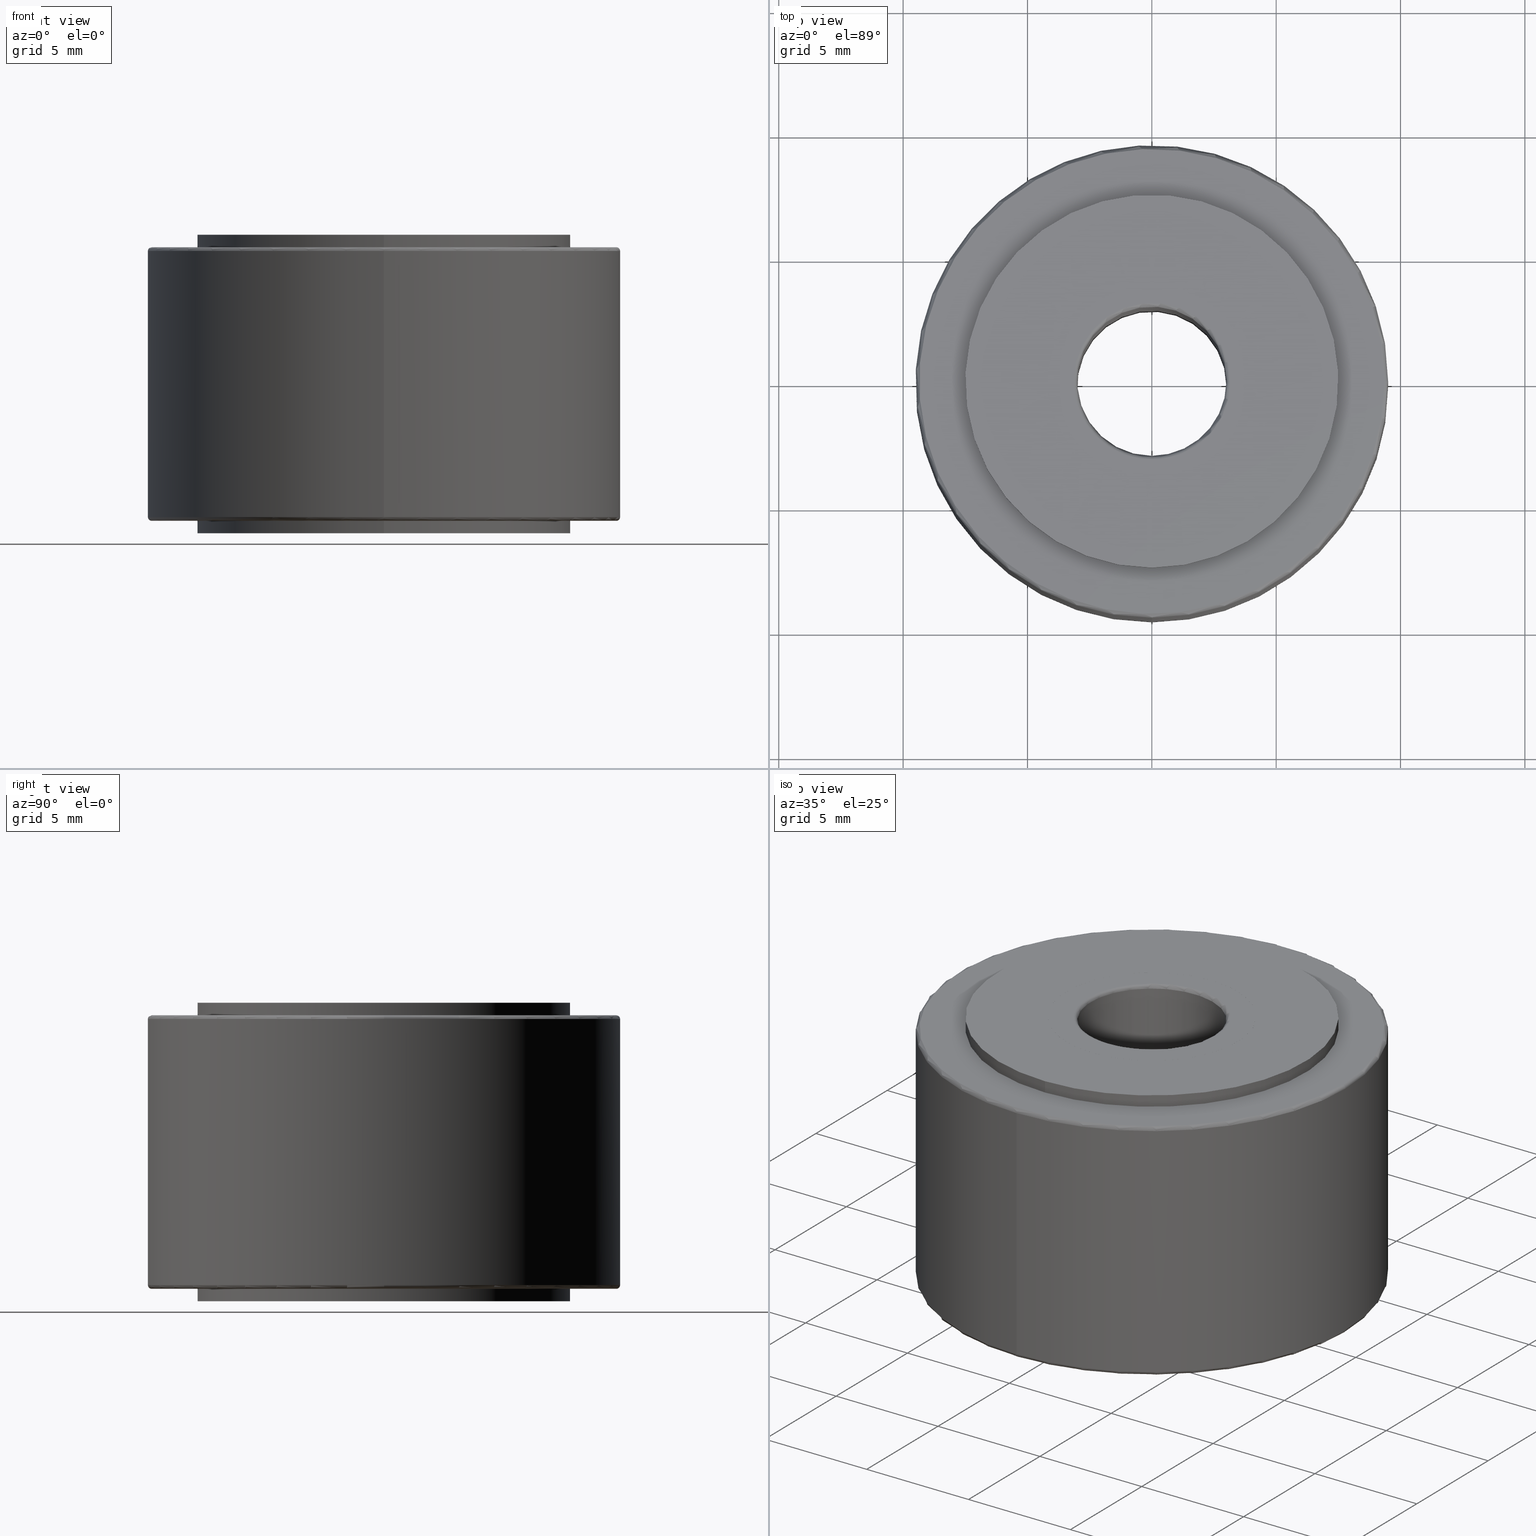
[diagram: canonical four-view strip — front | top / right | iso, engineering-drawing reading convention]
A machine part, canonical four-view strip (front | top / right | iso — engineering-drawing reading convention). The complete STEP part file that produces these views, byte-faithful:
ISO-10303-21;
HEADER;
/* Generated by software containing ST-Developer
 * from STEP Tools, Inc. (www.steptools.com) 
 */

FILE_DESCRIPTION(
/* description */ ('CUSCINETTO RULLI NATR6-PPX'),
/* implementation_level */ '2;1');

FILE_NAME(
/* name */ 'C:\\Users\\tecnico7\\Desktop\\DM80CUNATR6.stp',
/* time_stamp */ '2022-07-20T10:40:13+02:00',
/* author */ ('tecnico7'),
/* organization */ (''),
/* preprocessor_version */ 'ST-DEVELOPER v18.1',
/* originating_system */ 'Autodesk Inventor 2022',
/* authorisation */ '');

FILE_SCHEMA (('AUTOMOTIVE_DESIGN { 1 0 10303 214 3 1 1 }'));
ENDSEC;

DATA;
#10=MECHANICAL_DESIGN_GEOMETRIC_PRESENTATION_REPRESENTATION('',(#14,#15,
#16,#17,#18),#552);
#11=SHAPE_REPRESENTATION_RELATIONSHIP('SRR','None',#559,#12);
#12=ADVANCED_BREP_SHAPE_REPRESENTATION('',(#13),#551);
#13=MANIFOLD_SOLID_BREP('Solido1',#291);
#14=STYLED_ITEM('',(#569),#276);
#15=STYLED_ITEM('',(#569),#277);
#16=STYLED_ITEM('',(#569),#283);
#17=STYLED_ITEM('',(#569),#284);
#18=STYLED_ITEM('',(#568),#13);
#19=LINE('',#483,#27);
#20=LINE('',#489,#28);
#21=LINE('',#497,#29);
#22=LINE('',#511,#30);
#23=LINE('',#523,#31);
#24=LINE('',#529,#32);
#25=LINE('',#537,#33);
#26=LINE('',#548,#34);
#27=VECTOR('',#382,4.2);
#28=VECTOR('',#389,4.201);
#29=VECTOR('',#400,7.5);
#30=VECTOR('',#417,9.5);
#31=VECTOR('',#434,7.5);
#32=VECTOR('',#441,4.201);
#33=VECTOR('',#452,4.2);
#34=VECTOR('',#467,3.);
#35=CYLINDRICAL_SURFACE('',#321,4.2);
#36=CYLINDRICAL_SURFACE('',#325,4.201);
#37=CYLINDRICAL_SURFACE('',#329,7.5);
#38=CYLINDRICAL_SURFACE('',#337,9.5);
#39=CYLINDRICAL_SURFACE('',#345,7.5);
#40=CYLINDRICAL_SURFACE('',#349,4.201);
#41=CYLINDRICAL_SURFACE('',#353,4.2);
#42=CYLINDRICAL_SURFACE('',#361,3.);
#43=FACE_BOUND('',#81,.T.);
#44=FACE_BOUND('',#84,.T.);
#45=FACE_BOUND('',#87,.T.);
#46=FACE_BOUND('',#90,.T.);
#47=FACE_BOUND('',#95,.T.);
#48=FACE_BOUND('',#98,.T.);
#49=FACE_BOUND('',#101,.T.);
#50=FACE_BOUND('',#104,.T.);
#51=PLANE('',#319);
#52=PLANE('',#323);
#53=PLANE('',#327);
#54=PLANE('',#331);
#55=PLANE('',#343);
#56=PLANE('',#347);
#57=PLANE('',#351);
#58=PLANE('',#355);
#59=FACE_OUTER_BOUND('',#79,.T.);
#60=FACE_OUTER_BOUND('',#80,.T.);
#61=FACE_OUTER_BOUND('',#82,.T.);
#62=FACE_OUTER_BOUND('',#83,.T.);
#63=FACE_OUTER_BOUND('',#85,.T.);
#64=FACE_OUTER_BOUND('',#86,.T.);
#65=FACE_OUTER_BOUND('',#88,.T.);
#66=FACE_OUTER_BOUND('',#89,.T.);
#67=FACE_OUTER_BOUND('',#91,.T.);
#68=FACE_OUTER_BOUND('',#92,.T.);
#69=FACE_OUTER_BOUND('',#93,.T.);
#70=FACE_OUTER_BOUND('',#94,.T.);
#71=FACE_OUTER_BOUND('',#96,.T.);
#72=FACE_OUTER_BOUND('',#97,.T.);
#73=FACE_OUTER_BOUND('',#99,.T.);
#74=FACE_OUTER_BOUND('',#100,.T.);
#75=FACE_OUTER_BOUND('',#102,.T.);
#76=FACE_OUTER_BOUND('',#103,.T.);
#77=FACE_OUTER_BOUND('',#105,.T.);
#78=FACE_OUTER_BOUND('',#106,.T.);
#79=EDGE_LOOP('',(#195,#196,#197,#198,#199));
#80=EDGE_LOOP('',(#200));
#81=EDGE_LOOP('',(#201));
#82=EDGE_LOOP('',(#202,#203,#204,#205));
#83=EDGE_LOOP('',(#206));
#84=EDGE_LOOP('',(#207));
#85=EDGE_LOOP('',(#208,#209,#210,#211));
#86=EDGE_LOOP('',(#212));
#87=EDGE_LOOP('',(#213));
#88=EDGE_LOOP('',(#214,#215,#216,#217));
#89=EDGE_LOOP('',(#218));
#90=EDGE_LOOP('',(#219));
#91=EDGE_LOOP('',(#220,#221,#222,#223,#224));
#92=EDGE_LOOP('',(#225,#226,#227,#228,#229,#230));
#93=EDGE_LOOP('',(#231,#232,#233,#234,#235));
#94=EDGE_LOOP('',(#236));
#95=EDGE_LOOP('',(#237));
#96=EDGE_LOOP('',(#238,#239,#240,#241));
#97=EDGE_LOOP('',(#242));
#98=EDGE_LOOP('',(#243));
#99=EDGE_LOOP('',(#244,#245,#246,#247));
#100=EDGE_LOOP('',(#248));
#101=EDGE_LOOP('',(#249));
#102=EDGE_LOOP('',(#250,#251,#252,#253));
#103=EDGE_LOOP('',(#254));
#104=EDGE_LOOP('',(#255));
#105=EDGE_LOOP('',(#256,#257,#258,#259,#260));
#106=EDGE_LOOP('',(#261,#262,#263,#264,#265,#266));
#107=CIRCLE('',#315,3.15);
#108=CIRCLE('',#316,0.15);
#109=CIRCLE('',#317,3.);
#110=CIRCLE('',#318,3.);
#111=CIRCLE('',#320,4.2);
#112=CIRCLE('',#322,4.2);
#113=CIRCLE('',#324,4.201);
#114=CIRCLE('',#326,4.201);
#115=CIRCLE('',#328,7.5);
#116=CIRCLE('',#330,7.5);
#117=CIRCLE('',#332,9.35);
#118=CIRCLE('',#334,9.5);
#119=CIRCLE('',#335,9.5);
#120=CIRCLE('',#336,0.15);
#121=CIRCLE('',#338,9.5);
#122=CIRCLE('',#339,9.5);
#123=CIRCLE('',#341,9.35);
#124=CIRCLE('',#342,0.15);
#125=CIRCLE('',#344,7.5);
#126=CIRCLE('',#346,7.5);
#127=CIRCLE('',#348,4.201);
#128=CIRCLE('',#350,4.201);
#129=CIRCLE('',#352,4.2);
#130=CIRCLE('',#354,4.2);
#131=CIRCLE('',#356,3.15);
#132=CIRCLE('',#358,3.);
#133=CIRCLE('',#359,3.);
#134=CIRCLE('',#360,0.15);
#135=VERTEX_POINT('',#470);
#136=VERTEX_POINT('',#472);
#137=VERTEX_POINT('',#474);
#138=VERTEX_POINT('',#478);
#139=VERTEX_POINT('',#481);
#140=VERTEX_POINT('',#485);
#141=VERTEX_POINT('',#488);
#142=VERTEX_POINT('',#492);
#143=VERTEX_POINT('',#495);
#144=VERTEX_POINT('',#499);
#145=VERTEX_POINT('',#502);
#146=VERTEX_POINT('',#503);
#147=VERTEX_POINT('',#508);
#148=VERTEX_POINT('',#509);
#149=VERTEX_POINT('',#514);
#150=VERTEX_POINT('',#518);
#151=VERTEX_POINT('',#521);
#152=VERTEX_POINT('',#525);
#153=VERTEX_POINT('',#528);
#154=VERTEX_POINT('',#532);
#155=VERTEX_POINT('',#535);
#156=VERTEX_POINT('',#539);
#157=VERTEX_POINT('',#542);
#158=VERTEX_POINT('',#543);
#159=EDGE_CURVE('',#135,#135,#107,.T.);
#160=EDGE_CURVE('',#135,#136,#108,.T.);
#161=EDGE_CURVE('',#136,#137,#109,.T.);
#162=EDGE_CURVE('',#137,#136,#110,.T.);
#163=EDGE_CURVE('',#138,#138,#111,.T.);
#164=EDGE_CURVE('',#139,#139,#112,.T.);
#165=EDGE_CURVE('',#139,#138,#19,.T.);
#166=EDGE_CURVE('',#140,#140,#113,.T.);
#167=EDGE_CURVE('',#140,#141,#20,.T.);
#168=EDGE_CURVE('',#141,#141,#114,.T.);
#169=EDGE_CURVE('',#142,#142,#115,.T.);
#170=EDGE_CURVE('',#143,#143,#116,.T.);
#171=EDGE_CURVE('',#143,#142,#21,.T.);
#172=EDGE_CURVE('',#144,#144,#117,.T.);
#173=EDGE_CURVE('',#145,#146,#118,.T.);
#174=EDGE_CURVE('',#146,#145,#119,.T.);
#175=EDGE_CURVE('',#146,#144,#120,.T.);
#176=EDGE_CURVE('',#147,#148,#121,.T.);
#177=EDGE_CURVE('',#147,#145,#22,.T.);
#178=EDGE_CURVE('',#148,#147,#122,.T.);
#179=EDGE_CURVE('',#149,#149,#123,.T.);
#180=EDGE_CURVE('',#149,#148,#124,.T.);
#181=EDGE_CURVE('',#150,#150,#125,.T.);
#182=EDGE_CURVE('',#151,#151,#126,.T.);
#183=EDGE_CURVE('',#151,#150,#23,.T.);
#184=EDGE_CURVE('',#152,#152,#127,.T.);
#185=EDGE_CURVE('',#152,#153,#24,.T.);
#186=EDGE_CURVE('',#153,#153,#128,.T.);
#187=EDGE_CURVE('',#154,#154,#129,.T.);
#188=EDGE_CURVE('',#155,#155,#130,.T.);
#189=EDGE_CURVE('',#155,#154,#25,.T.);
#190=EDGE_CURVE('',#156,#156,#131,.T.);
#191=EDGE_CURVE('',#157,#158,#132,.T.);
#192=EDGE_CURVE('',#158,#157,#133,.T.);
#193=EDGE_CURVE('',#158,#156,#134,.T.);
#194=EDGE_CURVE('',#157,#137,#26,.T.);
#195=ORIENTED_EDGE('',*,*,#159,.F.);
#196=ORIENTED_EDGE('',*,*,#160,.T.);
#197=ORIENTED_EDGE('',*,*,#161,.T.);
#198=ORIENTED_EDGE('',*,*,#162,.T.);
#199=ORIENTED_EDGE('',*,*,#160,.F.);
#200=ORIENTED_EDGE('',*,*,#163,.F.);
#201=ORIENTED_EDGE('',*,*,#159,.T.);
#202=ORIENTED_EDGE('',*,*,#164,.F.);
#203=ORIENTED_EDGE('',*,*,#165,.T.);
#204=ORIENTED_EDGE('',*,*,#163,.T.);
#205=ORIENTED_EDGE('',*,*,#165,.F.);
#206=ORIENTED_EDGE('',*,*,#166,.F.);
#207=ORIENTED_EDGE('',*,*,#164,.T.);
#208=ORIENTED_EDGE('',*,*,#166,.T.);
#209=ORIENTED_EDGE('',*,*,#167,.T.);
#210=ORIENTED_EDGE('',*,*,#168,.F.);
#211=ORIENTED_EDGE('',*,*,#167,.F.);
#212=ORIENTED_EDGE('',*,*,#169,.F.);
#213=ORIENTED_EDGE('',*,*,#168,.T.);
#214=ORIENTED_EDGE('',*,*,#170,.F.);
#215=ORIENTED_EDGE('',*,*,#171,.T.);
#216=ORIENTED_EDGE('',*,*,#169,.T.);
#217=ORIENTED_EDGE('',*,*,#171,.F.);
#218=ORIENTED_EDGE('',*,*,#172,.F.);
#219=ORIENTED_EDGE('',*,*,#170,.T.);
#220=ORIENTED_EDGE('',*,*,#173,.F.);
#221=ORIENTED_EDGE('',*,*,#174,.F.);
#222=ORIENTED_EDGE('',*,*,#175,.T.);
#223=ORIENTED_EDGE('',*,*,#172,.T.);
#224=ORIENTED_EDGE('',*,*,#175,.F.);
#225=ORIENTED_EDGE('',*,*,#176,.F.);
#226=ORIENTED_EDGE('',*,*,#177,.T.);
#227=ORIENTED_EDGE('',*,*,#173,.T.);
#228=ORIENTED_EDGE('',*,*,#174,.T.);
#229=ORIENTED_EDGE('',*,*,#177,.F.);
#230=ORIENTED_EDGE('',*,*,#178,.F.);
#231=ORIENTED_EDGE('',*,*,#179,.F.);
#232=ORIENTED_EDGE('',*,*,#180,.T.);
#233=ORIENTED_EDGE('',*,*,#178,.T.);
#234=ORIENTED_EDGE('',*,*,#176,.T.);
#235=ORIENTED_EDGE('',*,*,#180,.F.);
#236=ORIENTED_EDGE('',*,*,#179,.T.);
#237=ORIENTED_EDGE('',*,*,#181,.F.);
#238=ORIENTED_EDGE('',*,*,#182,.F.);
#239=ORIENTED_EDGE('',*,*,#183,.T.);
#240=ORIENTED_EDGE('',*,*,#181,.T.);
#241=ORIENTED_EDGE('',*,*,#183,.F.);
#242=ORIENTED_EDGE('',*,*,#182,.T.);
#243=ORIENTED_EDGE('',*,*,#184,.F.);
#244=ORIENTED_EDGE('',*,*,#184,.T.);
#245=ORIENTED_EDGE('',*,*,#185,.T.);
#246=ORIENTED_EDGE('',*,*,#186,.F.);
#247=ORIENTED_EDGE('',*,*,#185,.F.);
#248=ORIENTED_EDGE('',*,*,#186,.T.);
#249=ORIENTED_EDGE('',*,*,#187,.F.);
#250=ORIENTED_EDGE('',*,*,#188,.F.);
#251=ORIENTED_EDGE('',*,*,#189,.T.);
#252=ORIENTED_EDGE('',*,*,#187,.T.);
#253=ORIENTED_EDGE('',*,*,#189,.F.);
#254=ORIENTED_EDGE('',*,*,#188,.T.);
#255=ORIENTED_EDGE('',*,*,#190,.F.);
#256=ORIENTED_EDGE('',*,*,#191,.F.);
#257=ORIENTED_EDGE('',*,*,#192,.F.);
#258=ORIENTED_EDGE('',*,*,#193,.T.);
#259=ORIENTED_EDGE('',*,*,#190,.T.);
#260=ORIENTED_EDGE('',*,*,#193,.F.);
#261=ORIENTED_EDGE('',*,*,#191,.T.);
#262=ORIENTED_EDGE('',*,*,#192,.T.);
#263=ORIENTED_EDGE('',*,*,#194,.T.);
#264=ORIENTED_EDGE('',*,*,#161,.F.);
#265=ORIENTED_EDGE('',*,*,#162,.F.);
#266=ORIENTED_EDGE('',*,*,#194,.F.);
#267=TOROIDAL_SURFACE('',#314,3.15,0.15);
#268=TOROIDAL_SURFACE('',#333,9.35,0.15);
#269=TOROIDAL_SURFACE('',#340,9.35,0.15);
#270=TOROIDAL_SURFACE('',#357,3.15,0.15);
#271=ADVANCED_FACE('',(#59),#267,.T.);
#272=ADVANCED_FACE('',(#60,#43),#51,.T.);
#273=ADVANCED_FACE('',(#61),#35,.T.);
#274=ADVANCED_FACE('',(#62,#44),#52,.T.);
#275=ADVANCED_FACE('',(#63),#36,.F.);
#276=ADVANCED_FACE('',(#64,#45),#53,.T.);
#277=ADVANCED_FACE('',(#65),#37,.T.);
#278=ADVANCED_FACE('',(#66,#46),#54,.T.);
#279=ADVANCED_FACE('',(#67),#268,.T.);
#280=ADVANCED_FACE('',(#68),#38,.T.);
#281=ADVANCED_FACE('',(#69),#269,.T.);
#282=ADVANCED_FACE('',(#70,#47),#55,.T.);
#283=ADVANCED_FACE('',(#71),#39,.T.);
#284=ADVANCED_FACE('',(#72,#48),#56,.T.);
#285=ADVANCED_FACE('',(#73),#40,.F.);
#286=ADVANCED_FACE('',(#74,#49),#57,.T.);
#287=ADVANCED_FACE('',(#75),#41,.T.);
#288=ADVANCED_FACE('',(#76,#50),#58,.T.);
#289=ADVANCED_FACE('',(#77),#270,.T.);
#290=ADVANCED_FACE('',(#78),#42,.F.);
#291=CLOSED_SHELL('',(#271,#272,#273,#274,#275,#276,#277,#278,#279,#280,
#281,#282,#283,#284,#285,#286,#287,#288,#289,#290));
#292=DERIVED_UNIT_ELEMENT(#295,1.);
#293=DERIVED_UNIT_ELEMENT(#554,-3.);
#294=DIMENSIONAL_EXPONENTS(1.,0.,0.,0.,0.,0.,0.);
#295=(
CONVERSION_BASED_UNIT('gram',#297)
MASS_UNIT()
NAMED_UNIT(#294)
);
#296=(
MASS_UNIT()
NAMED_UNIT(*)
SI_UNIT(.KILO.,.GRAM.)
);
#297=MASS_MEASURE_WITH_UNIT(MASS_MEASURE(0.001),#296);
#298=DERIVED_UNIT((#292,#293));
#299=MEASURE_REPRESENTATION_ITEM('density measure',
POSITIVE_RATIO_MEASURE(1.),#298);
#300=PROPERTY_DEFINITION_REPRESENTATION(#305,#302);
#301=PROPERTY_DEFINITION_REPRESENTATION(#306,#303);
#302=REPRESENTATION('material name',(#304),#551);
#303=REPRESENTATION('density',(#299),#551);
#304=DESCRIPTIVE_REPRESENTATION_ITEM('Generico','Generico');
#305=PROPERTY_DEFINITION('material property','material name',#561);
#306=PROPERTY_DEFINITION('material property','density of part',#561);
#307=DATE_TIME_ROLE('creation_date');
#308=APPLIED_DATE_AND_TIME_ASSIGNMENT(#309,#307,(#561));
#309=DATE_AND_TIME(#310,#311);
#310=CALENDAR_DATE(2014,18,8);
#311=LOCAL_TIME(0,0,0.,#312);
#312=COORDINATED_UNIVERSAL_TIME_OFFSET(0,0,.BEHIND.);
#313=AXIS2_PLACEMENT_3D('placement',#468,#362,#363);
#314=AXIS2_PLACEMENT_3D('',#469,#364,#365);
#315=AXIS2_PLACEMENT_3D('',#471,#366,#367);
#316=AXIS2_PLACEMENT_3D('',#473,#368,#369);
#317=AXIS2_PLACEMENT_3D('',#475,#370,#371);
#318=AXIS2_PLACEMENT_3D('',#476,#372,#373);
#319=AXIS2_PLACEMENT_3D('',#477,#374,#375);
#320=AXIS2_PLACEMENT_3D('',#479,#376,#377);
#321=AXIS2_PLACEMENT_3D('',#480,#378,#379);
#322=AXIS2_PLACEMENT_3D('',#482,#380,#381);
#323=AXIS2_PLACEMENT_3D('',#484,#383,#384);
#324=AXIS2_PLACEMENT_3D('',#486,#385,#386);
#325=AXIS2_PLACEMENT_3D('',#487,#387,#388);
#326=AXIS2_PLACEMENT_3D('',#490,#390,#391);
#327=AXIS2_PLACEMENT_3D('',#491,#392,#393);
#328=AXIS2_PLACEMENT_3D('',#493,#394,#395);
#329=AXIS2_PLACEMENT_3D('',#494,#396,#397);
#330=AXIS2_PLACEMENT_3D('',#496,#398,#399);
#331=AXIS2_PLACEMENT_3D('',#498,#401,#402);
#332=AXIS2_PLACEMENT_3D('',#500,#403,#404);
#333=AXIS2_PLACEMENT_3D('',#501,#405,#406);
#334=AXIS2_PLACEMENT_3D('',#504,#407,#408);
#335=AXIS2_PLACEMENT_3D('',#505,#409,#410);
#336=AXIS2_PLACEMENT_3D('',#506,#411,#412);
#337=AXIS2_PLACEMENT_3D('',#507,#413,#414);
#338=AXIS2_PLACEMENT_3D('',#510,#415,#416);
#339=AXIS2_PLACEMENT_3D('',#512,#418,#419);
#340=AXIS2_PLACEMENT_3D('',#513,#420,#421);
#341=AXIS2_PLACEMENT_3D('',#515,#422,#423);
#342=AXIS2_PLACEMENT_3D('',#516,#424,#425);
#343=AXIS2_PLACEMENT_3D('',#517,#426,#427);
#344=AXIS2_PLACEMENT_3D('',#519,#428,#429);
#345=AXIS2_PLACEMENT_3D('',#520,#430,#431);
#346=AXIS2_PLACEMENT_3D('',#522,#432,#433);
#347=AXIS2_PLACEMENT_3D('',#524,#435,#436);
#348=AXIS2_PLACEMENT_3D('',#526,#437,#438);
#349=AXIS2_PLACEMENT_3D('',#527,#439,#440);
#350=AXIS2_PLACEMENT_3D('',#530,#442,#443);
#351=AXIS2_PLACEMENT_3D('',#531,#444,#445);
#352=AXIS2_PLACEMENT_3D('',#533,#446,#447);
#353=AXIS2_PLACEMENT_3D('',#534,#448,#449);
#354=AXIS2_PLACEMENT_3D('',#536,#450,#451);
#355=AXIS2_PLACEMENT_3D('',#538,#453,#454);
#356=AXIS2_PLACEMENT_3D('',#540,#455,#456);
#357=AXIS2_PLACEMENT_3D('',#541,#457,#458);
#358=AXIS2_PLACEMENT_3D('',#544,#459,#460);
#359=AXIS2_PLACEMENT_3D('',#545,#461,#462);
#360=AXIS2_PLACEMENT_3D('',#546,#463,#464);
#361=AXIS2_PLACEMENT_3D('',#547,#465,#466);
#362=DIRECTION('axis',(0.,0.,1.));
#363=DIRECTION('refdir',(1.,0.,0.));
#364=DIRECTION('center_axis',(0.,3.06161699786839E-16,-1.));
#365=DIRECTION('ref_axis',(-1.,0.,0.));
#366=DIRECTION('center_axis',(0.,3.06161699786839E-16,-1.));
#367=DIRECTION('ref_axis',(1.,0.,0.));
#368=DIRECTION('center_axis',(-1.22464679914735E-16,-1.,-3.06161699786839E-16));
#369=DIRECTION('ref_axis',(1.,-1.22464679914735E-16,0.));
#370=DIRECTION('center_axis',(0.,3.06161699786839E-16,-1.));
#371=DIRECTION('ref_axis',(1.,0.,0.));
#372=DIRECTION('center_axis',(0.,3.06161699786839E-16,-1.));
#373=DIRECTION('ref_axis',(1.,0.,0.));
#374=DIRECTION('center_axis',(0.,-3.06161699786839E-16,1.));
#375=DIRECTION('ref_axis',(1.,0.,0.));
#376=DIRECTION('center_axis',(0.,3.06161699786839E-16,-1.));
#377=DIRECTION('ref_axis',(1.,0.,0.));
#378=DIRECTION('center_axis',(0.,3.06161699786839E-16,-1.));
#379=DIRECTION('ref_axis',(0.,1.,3.70074341541719E-16));
#380=DIRECTION('center_axis',(0.,3.06161699786839E-16,-1.));
#381=DIRECTION('ref_axis',(1.,0.,0.));
#382=DIRECTION('',(0.,-3.06161699786839E-16,1.));
#383=DIRECTION('center_axis',(0.,-3.06161699786839E-16,1.));
#384=DIRECTION('ref_axis',(1.,0.,0.));
#385=DIRECTION('center_axis',(0.,3.06161699786839E-16,-1.));
#386=DIRECTION('ref_axis',(1.,0.,0.));
#387=DIRECTION('center_axis',(0.,-3.06161699786839E-16,1.));
#388=DIRECTION('ref_axis',(0.,1.,3.70074341541719E-16));
#389=DIRECTION('',(0.,-3.06161699786839E-16,1.));
#390=DIRECTION('center_axis',(0.,3.06161699786839E-16,-1.));
#391=DIRECTION('ref_axis',(1.,0.,0.));
#392=DIRECTION('center_axis',(0.,-3.06161699786839E-16,1.));
#393=DIRECTION('ref_axis',(1.,0.,0.));
#394=DIRECTION('center_axis',(0.,3.06161699786839E-16,-1.));
#395=DIRECTION('ref_axis',(1.,0.,0.));
#396=DIRECTION('center_axis',(0.,3.06161699786839E-16,-1.));
#397=DIRECTION('ref_axis',(0.,1.,3.70074341541719E-16));
#398=DIRECTION('center_axis',(0.,3.06161699786839E-16,-1.));
#399=DIRECTION('ref_axis',(1.,0.,0.));
#400=DIRECTION('',(0.,-3.06161699786838E-16,1.));
#401=DIRECTION('center_axis',(0.,-3.06161699786839E-16,1.));
#402=DIRECTION('ref_axis',(1.,0.,0.));
#403=DIRECTION('center_axis',(0.,3.06161699786839E-16,-1.));
#404=DIRECTION('ref_axis',(1.,0.,0.));
#405=DIRECTION('center_axis',(0.,3.06161699786839E-16,-1.));
#406=DIRECTION('ref_axis',(-1.,0.,0.));
#407=DIRECTION('center_axis',(0.,3.06161699786839E-16,-1.));
#408=DIRECTION('ref_axis',(1.,0.,0.));
#409=DIRECTION('center_axis',(0.,3.06161699786839E-16,-1.));
#410=DIRECTION('ref_axis',(1.,0.,0.));
#411=DIRECTION('center_axis',(-1.22464679914735E-16,-1.,-3.06161699786839E-16));
#412=DIRECTION('ref_axis',(1.,-1.22464679914735E-16,0.));
#413=DIRECTION('center_axis',(0.,3.06161699786839E-16,-1.));
#414=DIRECTION('ref_axis',(0.,1.,3.70074341541719E-16));
#415=DIRECTION('center_axis',(0.,3.06161699786839E-16,-1.));
#416=DIRECTION('ref_axis',(1.,0.,0.));
#417=DIRECTION('',(0.,-3.06161699786839E-16,1.));
#418=DIRECTION('center_axis',(0.,3.06161699786839E-16,-1.));
#419=DIRECTION('ref_axis',(1.,0.,0.));
#420=DIRECTION('center_axis',(0.,3.06161699786839E-16,-1.));
#421=DIRECTION('ref_axis',(-1.,0.,0.));
#422=DIRECTION('center_axis',(0.,3.06161699786839E-16,-1.));
#423=DIRECTION('ref_axis',(1.,0.,0.));
#424=DIRECTION('center_axis',(-1.22464679914735E-16,-1.,-3.06161699786839E-16));
#425=DIRECTION('ref_axis',(1.,-1.22464679914735E-16,0.));
#426=DIRECTION('center_axis',(0.,3.06161699786839E-16,-1.));
#427=DIRECTION('ref_axis',(-1.,0.,0.));
#428=DIRECTION('center_axis',(0.,3.06161699786839E-16,-1.));
#429=DIRECTION('ref_axis',(1.,0.,0.));
#430=DIRECTION('center_axis',(0.,3.06161699786839E-16,-1.));
#431=DIRECTION('ref_axis',(0.,1.,3.70074341541719E-16));
#432=DIRECTION('center_axis',(0.,3.06161699786839E-16,-1.));
#433=DIRECTION('ref_axis',(1.,0.,0.));
#434=DIRECTION('',(0.,-3.06161699786838E-16,1.));
#435=DIRECTION('center_axis',(0.,3.06161699786839E-16,-1.));
#436=DIRECTION('ref_axis',(-1.,0.,0.));
#437=DIRECTION('center_axis',(0.,3.06161699786839E-16,-1.));
#438=DIRECTION('ref_axis',(1.,0.,0.));
#439=DIRECTION('center_axis',(0.,-3.06161699786839E-16,1.));
#440=DIRECTION('ref_axis',(0.,1.,3.70074341541719E-16));
#441=DIRECTION('',(0.,-3.06161699786839E-16,1.));
#442=DIRECTION('center_axis',(0.,3.06161699786839E-16,-1.));
#443=DIRECTION('ref_axis',(1.,0.,0.));
#444=DIRECTION('center_axis',(0.,3.06161699786839E-16,-1.));
#445=DIRECTION('ref_axis',(-1.,0.,0.));
#446=DIRECTION('center_axis',(0.,3.06161699786839E-16,-1.));
#447=DIRECTION('ref_axis',(1.,0.,0.));
#448=DIRECTION('center_axis',(0.,3.06161699786839E-16,-1.));
#449=DIRECTION('ref_axis',(0.,1.,3.70074341541719E-16));
#450=DIRECTION('center_axis',(0.,3.06161699786839E-16,-1.));
#451=DIRECTION('ref_axis',(1.,0.,0.));
#452=DIRECTION('',(0.,-3.06161699786839E-16,1.));
#453=DIRECTION('center_axis',(0.,3.06161699786839E-16,-1.));
#454=DIRECTION('ref_axis',(-1.,0.,0.));
#455=DIRECTION('center_axis',(0.,3.06161699786839E-16,-1.));
#456=DIRECTION('ref_axis',(1.,0.,0.));
#457=DIRECTION('center_axis',(0.,3.06161699786839E-16,-1.));
#458=DIRECTION('ref_axis',(-1.,0.,0.));
#459=DIRECTION('center_axis',(0.,3.06161699786839E-16,-1.));
#460=DIRECTION('ref_axis',(1.,0.,0.));
#461=DIRECTION('center_axis',(0.,3.06161699786839E-16,-1.));
#462=DIRECTION('ref_axis',(1.,0.,0.));
#463=DIRECTION('center_axis',(-1.22464679914735E-16,-1.,-3.06161699786839E-16));
#464=DIRECTION('ref_axis',(1.,-1.22464679914735E-16,0.));
#465=DIRECTION('center_axis',(0.,-3.06161699786839E-16,1.));
#466=DIRECTION('ref_axis',(0.,1.,3.70074341541719E-16));
#467=DIRECTION('',(0.,-3.06161699786838E-16,1.));
#468=CARTESIAN_POINT('',(0.,0.,0.));
#469=CARTESIAN_POINT('Origin',(0.,-2.93412675208331E-15,5.85));
#470=CARTESIAN_POINT('',(3.15,-3.36581474878275E-15,6.));
#471=CARTESIAN_POINT('Origin',(0.,-2.98005100705133E-15,6.));
#472=CARTESIAN_POINT('',(3.,-3.30152079182752E-15,5.85));
#473=CARTESIAN_POINT('Origin',(3.15,-3.31989049381473E-15,5.85));
#474=CARTESIAN_POINT('',(3.67394039744206E-16,-3.,5.85));
#475=CARTESIAN_POINT('Origin',(0.,-2.93412675208331E-15,5.85));
#476=CARTESIAN_POINT('Origin',(0.,-2.93412675208331E-15,5.85));
#477=CARTESIAN_POINT('Origin',(0.,4.2,6.));
#478=CARTESIAN_POINT('',(-5.14351655641888E-16,-4.2,6.));
#479=CARTESIAN_POINT('Origin',(0.,-2.98005100705133E-15,6.));
#480=CARTESIAN_POINT('Origin',(0.,-2.97989792620144E-15,5.9995));
#481=CARTESIAN_POINT('',(-5.14351655641888E-16,-4.2,5.999));
#482=CARTESIAN_POINT('Origin',(0.,-2.97974484535155E-15,5.999));
#483=CARTESIAN_POINT('',(-5.14351655641888E-16,-4.2,5.9995));
#484=CARTESIAN_POINT('Origin',(0.,4.201,5.999));
#485=CARTESIAN_POINT('',(5.14474120321803E-16,-4.201,5.999));
#486=CARTESIAN_POINT('Origin',(0.,-2.97974484535155E-15,5.999));
#487=CARTESIAN_POINT('Origin',(0.,-2.97989792620144E-15,5.9995));
#488=CARTESIAN_POINT('',(5.14474120321803E-16,-4.201,6.));
#489=CARTESIAN_POINT('',(5.14474120321803E-16,-4.201,5.9995));
#490=CARTESIAN_POINT('Origin',(0.,-2.98005100705133E-15,6.));
#491=CARTESIAN_POINT('Origin',(0.,7.5,6.));
#492=CARTESIAN_POINT('',(-9.18485099360515E-16,-7.5,6.));
#493=CARTESIAN_POINT('Origin',(0.,-2.98005100705133E-15,6.));
#494=CARTESIAN_POINT('Origin',(0.,-2.90351058210462E-15,5.75));
#495=CARTESIAN_POINT('',(-9.18485099360515E-16,-7.5,5.5));
#496=CARTESIAN_POINT('Origin',(0.,-2.82697015715792E-15,5.5));
#497=CARTESIAN_POINT('',(-9.18485099360515E-16,-7.5,5.75));
#498=CARTESIAN_POINT('Origin',(0.,9.35,5.5));
#499=CARTESIAN_POINT('',(9.35,-3.97201491436069E-15,5.5));
#500=CARTESIAN_POINT('Origin',(0.,-2.82697015715792E-15,5.5));
#501=CARTESIAN_POINT('Origin',(0.,-2.78104590218989E-15,5.35));
#502=CARTESIAN_POINT('',(-1.16341445918999E-15,-9.5,5.35));
#503=CARTESIAN_POINT('',(9.5,-3.94446036137988E-15,5.35));
#504=CARTESIAN_POINT('Origin',(0.,-2.78104590218989E-15,5.35));
#505=CARTESIAN_POINT('Origin',(0.,-2.78104590218989E-15,5.35));
#506=CARTESIAN_POINT('Origin',(9.35,-3.92609065939266E-15,5.35));
#507=CARTESIAN_POINT('Origin',(0.,-1.14308080833031E-15,-2.91433543964104E-15));
#508=CARTESIAN_POINT('',(-1.16341445918999E-15,-9.5,-5.35));
#509=CARTESIAN_POINT('',(9.5,-6.68530173660706E-16,-5.35));
#510=CARTESIAN_POINT('Origin',(0.,4.94884285529279E-16,-5.35));
#511=CARTESIAN_POINT('',(-1.16341445918999E-15,-9.5,-6.43004168428737E-15));
#512=CARTESIAN_POINT('Origin',(0.,4.94884285529279E-16,-5.35));
#513=CARTESIAN_POINT('Origin',(0.,4.94884285529279E-16,-5.35));
#514=CARTESIAN_POINT('',(9.35,-6.0423621670547E-16,-5.5));
#515=CARTESIAN_POINT('Origin',(0.,5.40808540497305E-16,-5.5));
#516=CARTESIAN_POINT('Origin',(9.35,-6.50160471673496E-16,-5.35));
#517=CARTESIAN_POINT('Origin',(0.,7.5,-5.5));
#518=CARTESIAN_POINT('',(-9.18485099360515E-16,-7.5,-5.5));
#519=CARTESIAN_POINT('Origin',(0.,5.40808540497305E-16,-5.5));
#520=CARTESIAN_POINT('Origin',(0.,6.17348965444014E-16,-5.75));
#521=CARTESIAN_POINT('',(-9.18485099360515E-16,-7.5,-6.));
#522=CARTESIAN_POINT('Origin',(0.,6.93889390390724E-16,-6.));
#523=CARTESIAN_POINT('',(-9.18485099360515E-16,-7.5,-5.75));
#524=CARTESIAN_POINT('Origin',(0.,4.201,-6.));
#525=CARTESIAN_POINT('',(5.14474120321803E-16,-4.201,-6.));
#526=CARTESIAN_POINT('Origin',(0.,6.93889390390724E-16,-6.));
#527=CARTESIAN_POINT('Origin',(0.,6.9373630954083E-16,-5.9995));
#528=CARTESIAN_POINT('',(5.14474120321803E-16,-4.201,-5.999));
#529=CARTESIAN_POINT('',(5.14474120321803E-16,-4.201,-5.9995));
#530=CARTESIAN_POINT('Origin',(0.,6.93583228690937E-16,-5.999));
#531=CARTESIAN_POINT('Origin',(0.,4.2,-5.999));
#532=CARTESIAN_POINT('',(-5.14351655641888E-16,-4.2,-5.999));
#533=CARTESIAN_POINT('Origin',(0.,6.93583228690937E-16,-5.999));
#534=CARTESIAN_POINT('Origin',(0.,6.9373630954083E-16,-5.9995));
#535=CARTESIAN_POINT('',(-5.14351655641888E-16,-4.2,-6.));
#536=CARTESIAN_POINT('Origin',(0.,6.93889390390724E-16,-6.));
#537=CARTESIAN_POINT('',(-5.14351655641888E-16,-4.2,-5.9995));
#538=CARTESIAN_POINT('Origin',(0.,3.15,-6.));
#539=CARTESIAN_POINT('',(3.15,3.08125648659308E-16,-6.));
#540=CARTESIAN_POINT('Origin',(0.,6.93889390390724E-16,-6.));
#541=CARTESIAN_POINT('Origin',(0.,6.47965135422698E-16,-5.85));
#542=CARTESIAN_POINT('',(3.67394039744206E-16,-3.,-5.85));
#543=CARTESIAN_POINT('',(3.,2.80571095678492E-16,-5.85));
#544=CARTESIAN_POINT('Origin',(0.,6.47965135422698E-16,-5.85));
#545=CARTESIAN_POINT('Origin',(0.,6.47965135422698E-16,-5.85));
#546=CARTESIAN_POINT('Origin',(3.15,2.62201393691282E-16,-5.85));
#547=CARTESIAN_POINT('Origin',(0.,-1.14308080833031E-15,-9.71445146547012E-16));
#548=CARTESIAN_POINT('',(3.67394039744206E-16,-3.,-2.08166817117217E-15));
#549=UNCERTAINTY_MEASURE_WITH_UNIT(LENGTH_MEASURE(0.01),#553,
'DISTANCE_ACCURACY_VALUE',
'Maximum model space distance between geometric entities at asserted c
onnectivities');
#550=UNCERTAINTY_MEASURE_WITH_UNIT(LENGTH_MEASURE(0.01),#553,
'DISTANCE_ACCURACY_VALUE',
'Maximum model space distance between geometric entities at asserted c
onnectivities');
#551=(
GEOMETRIC_REPRESENTATION_CONTEXT(3)
GLOBAL_UNCERTAINTY_ASSIGNED_CONTEXT((#549))
GLOBAL_UNIT_ASSIGNED_CONTEXT((#553,#555,#556))
REPRESENTATION_CONTEXT('','3D')
);
#552=(
GEOMETRIC_REPRESENTATION_CONTEXT(3)
GLOBAL_UNCERTAINTY_ASSIGNED_CONTEXT((#550))
GLOBAL_UNIT_ASSIGNED_CONTEXT((#553,#555,#556))
REPRESENTATION_CONTEXT('','3D')
);
#553=(
LENGTH_UNIT()
NAMED_UNIT(*)
SI_UNIT(.MILLI.,.METRE.)
);
#554=(
LENGTH_UNIT()
NAMED_UNIT(*)
SI_UNIT(.CENTI.,.METRE.)
);
#555=(
NAMED_UNIT(*)
PLANE_ANGLE_UNIT()
SI_UNIT($,.RADIAN.)
);
#556=(
NAMED_UNIT(*)
SI_UNIT($,.STERADIAN.)
SOLID_ANGLE_UNIT()
);
#557=SHAPE_DEFINITION_REPRESENTATION(#558,#559);
#558=PRODUCT_DEFINITION_SHAPE('',$,#561);
#559=SHAPE_REPRESENTATION('',(#313),#551);
#560=PRODUCT_DEFINITION_CONTEXT('part definition',#565,'design');
#561=PRODUCT_DEFINITION('DM80CUNATR6','DM80CUNATR6',#562,#560);
#562=PRODUCT_DEFINITION_FORMATION('A',$,#567);
#563=PRODUCT_RELATED_PRODUCT_CATEGORY('DM80CUNATR6','DM80CUNATR6',(#567));
#564=APPLICATION_PROTOCOL_DEFINITION('international standard',
'automotive_design',2009,#565);
#565=APPLICATION_CONTEXT(
'Core Data for Automotive Mechanical Design Process');
#566=PRODUCT_CONTEXT('part definition',#565,'mechanical');
#567=PRODUCT('DM80CUNATR6','DM80CUNATR6','CUSCINETTO RULLI NATR6-PPX',(#566));
#568=PRESENTATION_STYLE_ASSIGNMENT((#570));
#569=PRESENTATION_STYLE_ASSIGNMENT((#571));
#570=SURFACE_STYLE_USAGE(.BOTH.,#574);
#571=SURFACE_STYLE_USAGE(.BOTH.,#575);
#572=SURFACE_STYLE_RENDERING_WITH_PROPERTIES($,#582,(#573));
#573=SURFACE_STYLE_TRANSPARENT(0.);
#574=SURFACE_SIDE_STYLE('',(#576,#572));
#575=SURFACE_SIDE_STYLE('',(#577));
#576=SURFACE_STYLE_FILL_AREA(#578);
#577=SURFACE_STYLE_FILL_AREA(#579);
#578=FILL_AREA_STYLE('',(#580));
#579=FILL_AREA_STYLE('',(#581));
#580=FILL_AREA_STYLE_COLOUR('',#582);
#581=FILL_AREA_STYLE_COLOUR('',#583);
#582=COLOUR_RGB('',0.745098039215686,0.737254901960784,0.729411764705882);
#583=COLOUR_RGB('',0.164705882352941,0.164705882352941,0.164705882352941);
ENDSEC;
END-ISO-10303-21;
